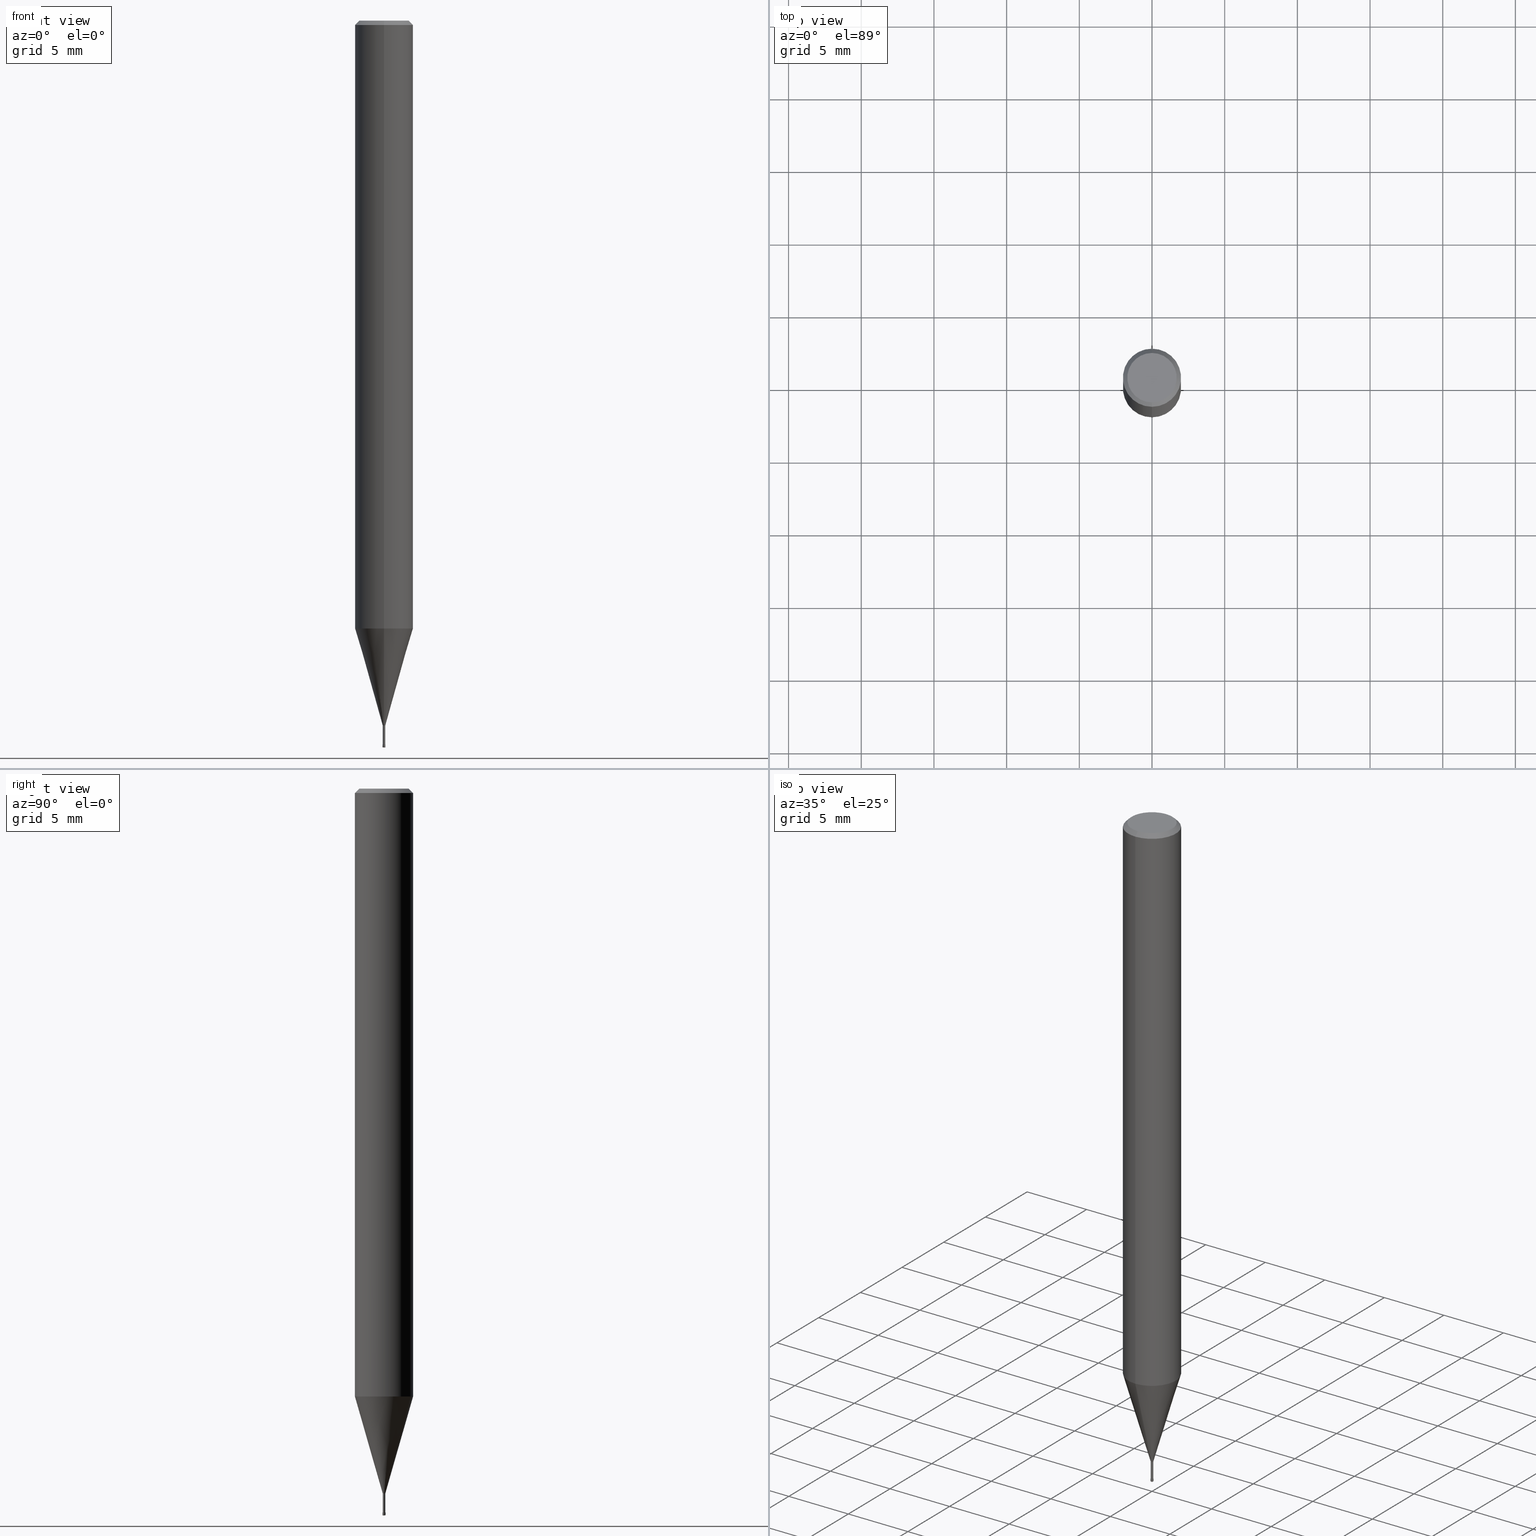
[diagram: canonical four-view strip — front | top / right | iso, engineering-drawing reading convention]
A machine part, canonical four-view strip (front | top / right | iso — engineering-drawing reading convention). The complete STEP part file that produces these views, byte-faithful:
ISO-10303-21;
HEADER;
FILE_DESCRIPTION(('no description'),'unknown implementation level');
FILE_NAME('HLRS2002-005-015E-Huellk.stp','  ',('CIMSOURCE GmbH'),('CADClick - KiM GmbH - www.kimweb.de'),'unknown preprocess','ACIS','unknown authorization');
FILE_SCHEMA(('automotive_design'));
ENDSEC;
DATA;
#1=MECHANICAL_DESIGN_GEOMETRIC_PRESENTATION_REPRESENTATION(' ',(#14,#15,#16,#17,#18,#19,#20,#21,#22,#23,#24,#25,#26,#27,#28,#29,#30,#31,#32,#33,#34,#35,#36,#37,#38,#39,#40,#41,#42,#43,#44,#45,#46,#47,#48,#49,#50,#51,#52,#53,#54,#55,#56,#57,#58,#59,#60,#61,#62,#63,#64,#65,#66,#67,#68,#69,#70,#71,#72,#73,#74,#75,#76,#77,#78,#79,#80),#10);
#2=PRODUCT_DEFINITION_CONTEXT('',#81,'design');
#3=APPLICATION_PROTOCOL_DEFINITION('INTERNATIONAL STANDARD','automotive_design',1994,#81);
#4=PRODUCT_CATEGORY_RELATIONSHIP('NONE','NONE',#82,#83);
#5=SHAPE_DEFINITION_REPRESENTATION(#84,#85);
#6=PRODUCT_DEFINITION_CONTEXT('',#86,'design');
#7=APPLICATION_PROTOCOL_DEFINITION('INTERNATIONAL STANDARD','automotive_design',1994,#86);
#8=PRODUCT_CATEGORY_RELATIONSHIP('NONE','NONE',#87,#88);
#9=SHAPE_DEFINITION_REPRESENTATION(#89,#90);
#10= (GEOMETRIC_REPRESENTATION_CONTEXT(3)GLOBAL_UNCERTAINTY_ASSIGNED_CONTEXT((#93))GLOBAL_UNIT_ASSIGNED_CONTEXT((#95,#96,#97))REPRESENTATION_CONTEXT('NONE','WORKSPACE'));
#14=STYLED_ITEM('',(#99),#100);
#15=STYLED_ITEM('',(#101),#102);
#16=STYLED_ITEM('',(#103),#104);
#17=STYLED_ITEM('',(#105),#106);
#18=STYLED_ITEM('',(#107),#108);
#19=STYLED_ITEM('',(#109),#110);
#20=STYLED_ITEM('',(#111),#112);
#21=STYLED_ITEM('',(#113),#114);
#22=STYLED_ITEM('',(#115),#116);
#23=STYLED_ITEM('',(#117),#118);
#24=STYLED_ITEM('',(#119),#120);
#25=STYLED_ITEM('',(#121),#122);
#26=STYLED_ITEM('',(#123),#124);
#27=STYLED_ITEM('',(#125),#126);
#28=STYLED_ITEM('',(#127),#128);
#29=STYLED_ITEM('',(#129),#130);
#30=STYLED_ITEM('',(#131),#132);
#31=STYLED_ITEM('',(#133),#134);
#32=STYLED_ITEM('',(#135),#136);
#33=STYLED_ITEM('',(#137),#138);
#34=STYLED_ITEM('',(#139),#140);
#35=STYLED_ITEM('',(#141),#142);
#36=STYLED_ITEM('',(#143),#144);
#37=STYLED_ITEM('',(#145),#146);
#38=STYLED_ITEM('',(#147),#148);
#39=STYLED_ITEM('',(#149),#150);
#40=STYLED_ITEM('',(#151),#152);
#41=STYLED_ITEM('',(#153),#154);
#42=STYLED_ITEM('',(#155),#156);
#43=STYLED_ITEM('',(#157),#158);
#44=STYLED_ITEM('',(#159),#160);
#45=STYLED_ITEM('',(#161),#162);
#46=STYLED_ITEM('',(#163),#164);
#47=STYLED_ITEM('',(#165),#166);
#48=STYLED_ITEM('',(#167),#168);
#49=STYLED_ITEM('',(#169),#170);
#50=STYLED_ITEM('',(#171),#172);
#51=STYLED_ITEM('',(#173),#174);
#52=STYLED_ITEM('',(#175),#176);
#53=STYLED_ITEM('',(#177),#178);
#54=STYLED_ITEM('',(#179),#180);
#55=STYLED_ITEM('',(#181),#182);
#56=STYLED_ITEM('',(#183),#184);
#57=STYLED_ITEM('',(#185),#186);
#58=STYLED_ITEM('',(#187),#188);
#59=STYLED_ITEM('',(#189),#190);
#60=STYLED_ITEM('',(#191),#192);
#61=STYLED_ITEM('',(#193),#194);
#62=STYLED_ITEM('',(#195),#196);
#63=STYLED_ITEM('',(#197),#198);
#64=STYLED_ITEM('',(#199),#200);
#65=STYLED_ITEM('',(#201),#202);
#66=STYLED_ITEM('',(#203),#204);
#67=STYLED_ITEM('',(#205),#206);
#68=STYLED_ITEM('',(#207),#208);
#69=STYLED_ITEM('',(#209),#210);
#70=STYLED_ITEM('',(#211),#212);
#71=STYLED_ITEM('',(#213),#214);
#72=STYLED_ITEM('',(#215),#216);
#73=STYLED_ITEM('',(#217),#218);
#74=STYLED_ITEM('',(#219),#220);
#75=STYLED_ITEM('',(#221),#222);
#76=STYLED_ITEM('',(#223),#224);
#77=STYLED_ITEM('',(#225),#226);
#78=STYLED_ITEM('',(#227),#228);
#79=STYLED_ITEM('',(#229),#230);
#80=STYLED_ITEM('',(#231),#232);
#81=APPLICATION_CONTEXT(' ');
#82=PRODUCT_CATEGORY('part','NONE');
#83=PRODUCT_RELATED_PRODUCT_CATEGORY('detail',' ',(#233));
#84=PRODUCT_DEFINITION_SHAPE('NONE','NONE',#234);
#85=ADVANCED_BREP_SHAPE_REPRESENTATION('1',(#154,#235),#10);
#86=APPLICATION_CONTEXT(' ');
#87=PRODUCT_CATEGORY('part','NONE');
#88=PRODUCT_RELATED_PRODUCT_CATEGORY('detail',' ',(#236));
#89=PRODUCT_DEFINITION_SHAPE('NONE','NONE',#237);
#90=ADVANCED_BREP_SHAPE_REPRESENTATION('2',(#198,#238),#10);
#93=UNCERTAINTY_MEASURE_WITH_UNIT(LENGTH_MEASURE(1.0E-006),#95,'','');
#95= (CONVERSION_BASED_UNIT('MILLIMETRE',#241)LENGTH_UNIT()NAMED_UNIT(#244));
#96= (NAMED_UNIT(#246)PLANE_ANGLE_UNIT()SI_UNIT($,.RADIAN.));
#97= (NAMED_UNIT(#246)SOLID_ANGLE_UNIT()SI_UNIT($,.STERADIAN.));
#99=PRESENTATION_STYLE_ASSIGNMENT((#252));
#100=EDGE_CURVE('',#158,#156,#253,.T.);
#101=PRESENTATION_STYLE_ASSIGNMENT((#254));
#102=EDGE_CURVE('',#176,#200,#255,.T.);
#103=PRESENTATION_STYLE_ASSIGNMENT((#256));
#104=ADVANCED_FACE('',(#257),#258,.T.);
#105=PRESENTATION_STYLE_ASSIGNMENT((#259));
#106=EDGE_CURVE('',#208,#222,#260,.T.);
#107=PRESENTATION_STYLE_ASSIGNMENT((#261));
#108=EDGE_CURVE('',#124,#210,#262,.T.);
#109=PRESENTATION_STYLE_ASSIGNMENT((#263));
#110=ADVANCED_FACE('',(#264),#265,.T.);
#111=PRESENTATION_STYLE_ASSIGNMENT((#266));
#112=ADVANCED_FACE('',(#267,#268),#269,.T.);
#113=PRESENTATION_STYLE_ASSIGNMENT((#270));
#114=EDGE_CURVE('',#136,#176,#271,.T.);
#115=PRESENTATION_STYLE_ASSIGNMENT((#272));
#116=EDGE_CURVE('',#146,#222,#273,.T.);
#117=PRESENTATION_STYLE_ASSIGNMENT((#274));
#118=ADVANCED_FACE('',(#275),#276,.T.);
#119=PRESENTATION_STYLE_ASSIGNMENT((#277));
#120=ADVANCED_FACE('',(#278),#279,.T.);
#121=PRESENTATION_STYLE_ASSIGNMENT((#280));
#122=EDGE_CURVE('',#128,#160,#281,.T.);
#123=PRESENTATION_STYLE_ASSIGNMENT((#282));
#124=VERTEX_POINT('',#283);
#125=PRESENTATION_STYLE_ASSIGNMENT((#284));
#126=ADVANCED_FACE('',(#285),#286,.T.);
#127=PRESENTATION_STYLE_ASSIGNMENT((#287));
#128=VERTEX_POINT('',#288);
#129=PRESENTATION_STYLE_ASSIGNMENT((#289));
#130=ADVANCED_FACE('',(#290),#291,.T.);
#131=PRESENTATION_STYLE_ASSIGNMENT((#292));
#132=EDGE_CURVE('',#222,#158,#293,.T.);
#133=PRESENTATION_STYLE_ASSIGNMENT((#294));
#134=EDGE_CURVE('',#176,#138,#295,.T.);
#135=PRESENTATION_STYLE_ASSIGNMENT((#296));
#136=VERTEX_POINT('',#297);
#137=PRESENTATION_STYLE_ASSIGNMENT((#298));
#138=VERTEX_POINT('',#299);
#139=PRESENTATION_STYLE_ASSIGNMENT((#300));
#140=EDGE_CURVE('',#232,#208,#301,.T.);
#141=PRESENTATION_STYLE_ASSIGNMENT((#302));
#142=ADVANCED_FACE('',(#303),#304,.T.);
#143=PRESENTATION_STYLE_ASSIGNMENT((#305));
#144=VERTEX_POINT('',#306);
#145=PRESENTATION_STYLE_ASSIGNMENT((#307));
#146=VERTEX_POINT('',#308);
#147=PRESENTATION_STYLE_ASSIGNMENT((#309));
#148=EDGE_CURVE('',#156,#146,#310,.T.);
#149=PRESENTATION_STYLE_ASSIGNMENT((#311));
#150=ADVANCED_FACE('',(#312),#313,.T.);
#151=PRESENTATION_STYLE_ASSIGNMENT((#314));
#152=ADVANCED_FACE('',(#315),#316,.T.);
#153=PRESENTATION_STYLE_ASSIGNMENT((#317));
#154=MANIFOLD_SOLID_BREP('1',#318);
#155=PRESENTATION_STYLE_ASSIGNMENT((#319));
#156=VERTEX_POINT('',#320);
#157=PRESENTATION_STYLE_ASSIGNMENT((#321));
#158=VERTEX_POINT('',#322);
#159=PRESENTATION_STYLE_ASSIGNMENT((#323));
#160=VERTEX_POINT('',#324);
#161=PRESENTATION_STYLE_ASSIGNMENT((#325));
#162=EDGE_CURVE('',#124,#160,#326,.T.);
#163=PRESENTATION_STYLE_ASSIGNMENT((#327));
#164=VERTEX_POINT('',#328);
#165=PRESENTATION_STYLE_ASSIGNMENT((#329));
#166=ADVANCED_FACE('',(#330),#331,.T.);
#167=PRESENTATION_STYLE_ASSIGNMENT((#332));
#168=ADVANCED_FACE('',(#333),#334,.T.);
#169=PRESENTATION_STYLE_ASSIGNMENT((#335));
#170=EDGE_CURVE('',#136,#218,#336,.T.);
#171=PRESENTATION_STYLE_ASSIGNMENT((#337));
#172=EDGE_CURVE('',#200,#176,#338,.T.);
#173=PRESENTATION_STYLE_ASSIGNMENT((#339));
#174=EDGE_CURVE('',#156,#158,#340,.T.);
#175=PRESENTATION_STYLE_ASSIGNMENT((#341));
#176=VERTEX_POINT('',#342);
#177=PRESENTATION_STYLE_ASSIGNMENT((#343));
#178=EDGE_CURVE('',#144,#160,#344,.T.);
#179=PRESENTATION_STYLE_ASSIGNMENT((#345));
#180=ADVANCED_FACE('',(#346),#347,.T.);
#181=PRESENTATION_STYLE_ASSIGNMENT((#348));
#182=ADVANCED_FACE('',(#349),#350,.T.);
#183=PRESENTATION_STYLE_ASSIGNMENT((#351));
#184=EDGE_CURVE('',#230,#138,#352,.T.);
#185=PRESENTATION_STYLE_ASSIGNMENT((#353));
#186=ADVANCED_FACE('',(#354),#355,.T.);
#187=PRESENTATION_STYLE_ASSIGNMENT((#356));
#188=EDGE_CURVE('',#208,#232,#357,.T.);
#189=PRESENTATION_STYLE_ASSIGNMENT((#358));
#190=EDGE_CURVE('',#138,#230,#359,.T.);
#191=PRESENTATION_STYLE_ASSIGNMENT((#360));
#192=EDGE_CURVE('',#230,#200,#361,.T.);
#193=PRESENTATION_STYLE_ASSIGNMENT((#362));
#194=EDGE_CURVE('',#160,#128,#363,.T.);
#195=PRESENTATION_STYLE_ASSIGNMENT((#364));
#196=EDGE_CURVE('',#200,#218,#365,.T.);
#197=PRESENTATION_STYLE_ASSIGNMENT((#366));
#198=MANIFOLD_SOLID_BREP('2',#367);
#199=PRESENTATION_STYLE_ASSIGNMENT((#368));
#200=VERTEX_POINT('',#369);
#201=PRESENTATION_STYLE_ASSIGNMENT((#370));
#202=EDGE_CURVE('',#128,#164,#371,.T.);
#203=PRESENTATION_STYLE_ASSIGNMENT((#372));
#204=EDGE_CURVE('',#144,#164,#373,.T.);
#205=PRESENTATION_STYLE_ASSIGNMENT((#374));
#206=ADVANCED_FACE('',(#375),#376,.T.);
#207=PRESENTATION_STYLE_ASSIGNMENT((#377));
#208=VERTEX_POINT('',#378);
#209=PRESENTATION_STYLE_ASSIGNMENT((#379));
#210=VERTEX_POINT('',#380);
#211=PRESENTATION_STYLE_ASSIGNMENT((#381));
#212=EDGE_CURVE('',#218,#136,#382,.T.);
#213=PRESENTATION_STYLE_ASSIGNMENT((#383));
#214=EDGE_CURVE('',#222,#146,#384,.T.);
#215=PRESENTATION_STYLE_ASSIGNMENT((#385));
#216=EDGE_CURVE('',#164,#144,#386,.T.);
#217=PRESENTATION_STYLE_ASSIGNMENT((#387));
#218=VERTEX_POINT('',#388);
#219=PRESENTATION_STYLE_ASSIGNMENT((#389));
#220=ADVANCED_FACE('',(#390),#391,.T.);
#221=PRESENTATION_STYLE_ASSIGNMENT((#392));
#222=VERTEX_POINT('',#393);
#223=PRESENTATION_STYLE_ASSIGNMENT((#394));
#224=EDGE_CURVE('',#128,#210,#395,.T.);
#225=PRESENTATION_STYLE_ASSIGNMENT((#396));
#226=EDGE_CURVE('',#146,#232,#397,.T.);
#227=PRESENTATION_STYLE_ASSIGNMENT((#398));
#228=EDGE_CURVE('',#210,#124,#399,.T.);
#229=PRESENTATION_STYLE_ASSIGNMENT((#400));
#230=VERTEX_POINT('',#401);
#231=PRESENTATION_STYLE_ASSIGNMENT((#402));
#232=VERTEX_POINT('',#403);
#233=PRODUCT('1','1','PART-1-DESC',(#404));
#234=PRODUCT_DEFINITION('NONE','NONE',#405,#2);
#235=AXIS2_PLACEMENT_3D('',#406,#407,#408);
#236=PRODUCT('2','2','PART-2-DESC',(#409));
#237=PRODUCT_DEFINITION('NONE','NONE',#410,#6);
#238=AXIS2_PLACEMENT_3D('',#411,#412,#413);
#241=LENGTH_MEASURE_WITH_UNIT(LENGTH_MEASURE(1.0),#414);
#244=DIMENSIONAL_EXPONENTS(1.0,0.0,0.0,0.0,0.0,0.0,0.0);
#246=DIMENSIONAL_EXPONENTS(0.0,0.0,0.0,0.0,0.0,0.0,0.0);
#252=CURVE_STYLE('',#415,POSITIVE_LENGTH_MEASURE(1.0E-006),#416);
#253=CIRCLE('',#417,0.08495);
#254=CURVE_STYLE('',#418,POSITIVE_LENGTH_MEASURE(1.0E-006),#419);
#255=CIRCLE('',#420,2.0);
#256=SURFACE_STYLE_USAGE(.BOTH.,#421);
#257=FACE_OUTER_BOUND('',#422,.T.);
#258=CONICAL_SURFACE('',#423,1.85,0.785398163397453);
#259=CURVE_STYLE('',#424,POSITIVE_LENGTH_MEASURE(1.0E-006),#425);
#260=LINE('',#426,#427);
#261=CURVE_STYLE('',#428,POSITIVE_LENGTH_MEASURE(1.0E-006),#429);
#262=CIRCLE('',#430,0.05);
#263=SURFACE_STYLE_USAGE(.BOTH.,#431);
#264=FACE_OUTER_BOUND('',#432,.T.);
#265=TOROIDAL_SURFACE('',#433,0.0499999999999999,0.0500000000000001);
#266=SURFACE_STYLE_USAGE(.BOTH.,#434);
#267=FACE_OUTER_BOUND('',#435,.T.);
#268=FACE_BOUND('',#436,.T.);
#269=PLANE('',#437);
#270=CURVE_STYLE('',#438,POSITIVE_LENGTH_MEASURE(1.0E-006),#439);
#271=LINE('',#440,#441);
#272=CURVE_STYLE('',#442,POSITIVE_LENGTH_MEASURE(1.0E-006),#443);
#273=CIRCLE('',#444,0.08495);
#274=SURFACE_STYLE_USAGE(.BOTH.,#445);
#275=FACE_OUTER_BOUND('',#446,.T.);
#276=CONICAL_SURFACE('',#447,1.85,0.785398163397453);
#277=SURFACE_STYLE_USAGE(.BOTH.,#448);
#278=FACE_OUTER_BOUND('',#449,.T.);
#279=CYLINDRICAL_SURFACE('',#450,0.08495);
#280=CURVE_STYLE('',#451,POSITIVE_LENGTH_MEASURE(1.0E-006),#452);
#281=CIRCLE('',#453,0.1);
#282=POINT_STYLE(' ',#454,POSITIVE_LENGTH_MEASURE(1.0E-006),#455);
#283=CARTESIAN_POINT('',(0.0,0.05,-50.0));
#284=SURFACE_STYLE_USAGE(.BOTH.,#456);
#285=FACE_OUTER_BOUND('',#457,.T.);
#286=CYLINDRICAL_SURFACE('',#458,2.0);
#287=POINT_STYLE(' ',#459,POSITIVE_LENGTH_MEASURE(1.0E-006),#460);
#288=CARTESIAN_POINT('',(1.22460635382238E-017,-0.1,-49.95));
#289=SURFACE_STYLE_USAGE(.BOTH.,#461);
#290=FACE_OUTER_BOUND('',#462,.T.);
#291=TOROIDAL_SURFACE('',#463,0.0499999999999999,0.0500000000000001);
#292=CURVE_STYLE('',#464,POSITIVE_LENGTH_MEASURE(1.0E-006),#465);
#293=LINE('',#466,#467);
#294=CURVE_STYLE('',#468,POSITIVE_LENGTH_MEASURE(1.0E-006),#469);
#295=LINE('',#470,#471);
#296=POINT_STYLE(' ',#472,POSITIVE_LENGTH_MEASURE(1.0E-006),#473);
#297=CARTESIAN_POINT('',(2.44921270764475E-016,-2.0,-41.822));
#298=POINT_STYLE(' ',#474,POSITIVE_LENGTH_MEASURE(1.0E-006),#475);
#299=CARTESIAN_POINT('',(2.08183080149804E-016,-1.7,0.0));
#300=CURVE_STYLE('',#476,POSITIVE_LENGTH_MEASURE(1.0E-006),#477);
#301=CIRCLE('',#478,1.99995);
#302=SURFACE_STYLE_USAGE(.BOTH.,#479);
#303=FACE_OUTER_BOUND('',#480,.T.);
#304=CONICAL_SURFACE('',#481,0.09995,0.00066666656790128);
#305=POINT_STYLE(' ',#482,POSITIVE_LENGTH_MEASURE(1.0E-006),#483);
#306=CARTESIAN_POINT('',(0.0,0.0999,-49.8));
#307=POINT_STYLE(' ',#484,POSITIVE_LENGTH_MEASURE(1.0E-006),#485);
#308=CARTESIAN_POINT('',(1.04030309757211E-017,-0.08495,-48.5));
#309=CURVE_STYLE('',#486,POSITIVE_LENGTH_MEASURE(1.0E-006),#487);
#310=LINE('',#488,#489);
#311=SURFACE_STYLE_USAGE(.BOTH.,#490);
#312=FACE_OUTER_BOUND('',#491,.T.);
#313=PLANE('',#492);
#314=SURFACE_STYLE_USAGE(.BOTH.,#493);
#315=FACE_OUTER_BOUND('',#494,.T.);
#316=CONICAL_SURFACE('',#495,0.09995,0.00066666656790128);
#317=SURFACE_STYLE_USAGE(.BOTH.,#496);
#318=CLOSED_SHELL('',(#186,#180,#220,#118,#112,#150,#104,#126,#206,#120,#182));
#319=POINT_STYLE(' ',#497,POSITIVE_LENGTH_MEASURE(1.0E-006),#498);
#320=CARTESIAN_POINT('',(1.04030309757211E-017,-0.08495,-49.8));
#321=POINT_STYLE(' ',#499,POSITIVE_LENGTH_MEASURE(1.0E-006),#500);
#322=CARTESIAN_POINT('',(0.0,0.08495,-49.8));
#323=POINT_STYLE(' ',#501,POSITIVE_LENGTH_MEASURE(1.0E-006),#502);
#324=CARTESIAN_POINT('',(0.0,0.1,-49.95));
#325=CURVE_STYLE('',#503,POSITIVE_LENGTH_MEASURE(1.0E-006),#504);
#326=CIRCLE('',#505,0.0500000000000001);
#327=POINT_STYLE(' ',#506,POSITIVE_LENGTH_MEASURE(1.0E-006),#507);
#328=CARTESIAN_POINT('',(1.22338174746855E-017,-0.0999,-49.8));
#329=SURFACE_STYLE_USAGE(.BOTH.,#508);
#330=FACE_OUTER_BOUND('',#509,.T.);
#331=PLANE('',#510);
#332=SURFACE_STYLE_USAGE(.BOTH.,#511);
#333=FACE_OUTER_BOUND('',#512,.T.);
#334=PLANE('',#513);
#335=CURVE_STYLE('',#514,POSITIVE_LENGTH_MEASURE(1.0E-006),#515);
#336=CIRCLE('',#516,2.0);
#337=CURVE_STYLE('',#517,POSITIVE_LENGTH_MEASURE(1.0E-006),#518);
#338=CIRCLE('',#519,2.0);
#339=CURVE_STYLE('',#520,POSITIVE_LENGTH_MEASURE(1.0E-006),#521);
#340=CIRCLE('',#522,0.08495);
#341=POINT_STYLE(' ',#523,POSITIVE_LENGTH_MEASURE(1.0E-006),#524);
#342=CARTESIAN_POINT('',(2.44921270764475E-016,-2.0,-0.299999999999997));
#343=CURVE_STYLE('',#525,POSITIVE_LENGTH_MEASURE(1.0E-006),#526);
#344=LINE('',#527,#528);
#345=SURFACE_STYLE_USAGE(.BOTH.,#529);
#346=FACE_OUTER_BOUND('',#530,.T.);
#347=CONICAL_SURFACE('',#531,1.04245,0.279268497676986);
#348=SURFACE_STYLE_USAGE(.BOTH.,#532);
#349=FACE_OUTER_BOUND('',#533,.T.);
#350=PLANE('',#534);
#351=CURVE_STYLE('',#535,POSITIVE_LENGTH_MEASURE(1.0E-006),#536);
#352=CIRCLE('',#537,1.7);
#353=SURFACE_STYLE_USAGE(.BOTH.,#538);
#354=FACE_OUTER_BOUND('',#539,.T.);
#355=CYLINDRICAL_SURFACE('',#540,0.08495);
#356=CURVE_STYLE('',#541,POSITIVE_LENGTH_MEASURE(1.0E-006),#542);
#357=CIRCLE('',#543,1.99995);
#358=CURVE_STYLE('',#544,POSITIVE_LENGTH_MEASURE(1.0E-006),#545);
#359=CIRCLE('',#546,1.7);
#360=CURVE_STYLE('',#547,POSITIVE_LENGTH_MEASURE(1.0E-006),#548);
#361=LINE('',#549,#550);
#362=CURVE_STYLE('',#551,POSITIVE_LENGTH_MEASURE(1.0E-006),#552);
#363=CIRCLE('',#553,0.1);
#364=CURVE_STYLE('',#554,POSITIVE_LENGTH_MEASURE(1.0E-006),#555);
#365=LINE('',#556,#557);
#366=SURFACE_STYLE_USAGE(.BOTH.,#558);
#367=CLOSED_SHELL('',(#110,#142,#166,#152,#130,#168));
#368=POINT_STYLE(' ',#559,POSITIVE_LENGTH_MEASURE(1.0E-006),#560);
#369=CARTESIAN_POINT('',(0.0,2.0,-0.299999999999997));
#370=CURVE_STYLE('',#561,POSITIVE_LENGTH_MEASURE(1.0E-006),#562);
#371=LINE('',#563,#564);
#372=CURVE_STYLE('',#565,POSITIVE_LENGTH_MEASURE(1.0E-006),#566);
#373=CIRCLE('',#567,0.0999);
#374=SURFACE_STYLE_USAGE(.BOTH.,#568);
#375=FACE_OUTER_BOUND('',#569,.T.);
#376=CONICAL_SURFACE('',#570,1.04245,0.279268497676986);
#377=POINT_STYLE(' ',#571,POSITIVE_LENGTH_MEASURE(1.0E-006),#572);
#378=CARTESIAN_POINT('',(0.0,1.99995,-41.822));
#379=POINT_STYLE(' ',#573,POSITIVE_LENGTH_MEASURE(1.0E-006),#574);
#380=CARTESIAN_POINT('',(6.12303176911189E-018,-0.05,-50.0));
#381=CURVE_STYLE('',#575,POSITIVE_LENGTH_MEASURE(1.0E-006),#576);
#382=CIRCLE('',#577,2.0);
#383=CURVE_STYLE('',#578,POSITIVE_LENGTH_MEASURE(1.0E-006),#579);
#384=CIRCLE('',#580,0.08495);
#385=CURVE_STYLE('',#581,POSITIVE_LENGTH_MEASURE(1.0E-006),#582);
#386=CIRCLE('',#583,0.0999);
#387=POINT_STYLE(' ',#584,POSITIVE_LENGTH_MEASURE(1.0E-006),#585);
#388=CARTESIAN_POINT('',(0.0,2.0,-41.822));
#389=SURFACE_STYLE_USAGE(.BOTH.,#586);
#390=FACE_OUTER_BOUND('',#587,.T.);
#391=CYLINDRICAL_SURFACE('',#588,2.0);
#392=POINT_STYLE(' ',#589,POSITIVE_LENGTH_MEASURE(1.0E-006),#590);
#393=CARTESIAN_POINT('',(0.0,0.08495,-48.5));
#394=CURVE_STYLE('',#591,POSITIVE_LENGTH_MEASURE(1.0E-006),#592);
#395=CIRCLE('',#593,0.0500000000000001);
#396=CURVE_STYLE('',#594,POSITIVE_LENGTH_MEASURE(1.0E-006),#595);
#397=LINE('',#596,#597);
#398=CURVE_STYLE('',#598,POSITIVE_LENGTH_MEASURE(1.0E-006),#599);
#399=CIRCLE('',#600,0.05);
#400=POINT_STYLE(' ',#601,POSITIVE_LENGTH_MEASURE(1.0E-006),#602);
#401=CARTESIAN_POINT('',(0.0,1.7,0.0));
#402=POINT_STYLE(' ',#603,POSITIVE_LENGTH_MEASURE(1.0E-006),#604);
#403=CARTESIAN_POINT('',(2.44915147732706E-016,-1.99995,-41.822));
#404=PRODUCT_CONTEXT('',#81,'mechanical');
#405=PRODUCT_DEFINITION_FORMATION_WITH_SPECIFIED_SOURCE(' ','NONE',#233,.NOT_KNOWN.);
#406=CARTESIAN_POINT('',(0.0,0.0,0.0));
#407=DIRECTION('',(0.0,0.0,1.0));
#408=DIRECTION('',(1.0,0.0,0.0));
#409=PRODUCT_CONTEXT('',#86,'mechanical');
#410=PRODUCT_DEFINITION_FORMATION_WITH_SPECIFIED_SOURCE(' ','NONE',#236,.NOT_KNOWN.);
#411=CARTESIAN_POINT('',(0.0,0.0,0.0));
#412=DIRECTION('',(0.0,0.0,1.0));
#413=DIRECTION('',(1.0,0.0,0.0));
#414= (NAMED_UNIT(#244)LENGTH_UNIT()SI_UNIT(.MILLI.,.METRE.));
#415=DRAUGHTING_PRE_DEFINED_CURVE_FONT('continuous');
#416=COLOUR_RGB('',0.498039215803146,0.498039215803146,0.498039215803146);
#417=AXIS2_PLACEMENT_3D('',#606,#607,#608);
#418=DRAUGHTING_PRE_DEFINED_CURVE_FONT('continuous');
#419=COLOUR_RGB('',0.498039215803146,0.498039215803146,0.498039215803146);
#420=AXIS2_PLACEMENT_3D('',#609,#610,#611);
#421=SURFACE_SIDE_STYLE('',(#612));
#422=EDGE_LOOP('',(#613,#614,#615,#616));
#423=AXIS2_PLACEMENT_3D('',#617,#618,#619);
#424=DRAUGHTING_PRE_DEFINED_CURVE_FONT('continuous');
#425=COLOUR_RGB('',0.498039215803146,0.498039215803146,0.498039215803146);
#426=CARTESIAN_POINT('',(-1.27659089354214E-016,1.04245,-45.161));
#427=VECTOR('',#620,1.0);
#428=DRAUGHTING_PRE_DEFINED_CURVE_FONT('continuous');
#429=COLOUR_RGB('',0.800000011920929,0.800000011920929,0.800000011920929);
#430=AXIS2_PLACEMENT_3D('',#621,#622,#623);
#431=SURFACE_SIDE_STYLE('',(#624));
#432=EDGE_LOOP('',(#625,#626,#627,#628));
#433=AXIS2_PLACEMENT_3D('',#629,#630,#631);
#434=SURFACE_SIDE_STYLE('',(#632));
#435=EDGE_LOOP('',(#633,#634));
#436=EDGE_LOOP('',(#635,#636));
#437=AXIS2_PLACEMENT_3D('',#637,#638,#639);
#438=DRAUGHTING_PRE_DEFINED_CURVE_FONT('continuous');
#439=COLOUR_RGB('',0.498039215803146,0.498039215803146,0.498039215803146);
#440=CARTESIAN_POINT('',(2.44921270764475E-016,-2.0,-21.061));
#441=VECTOR('',#640,1.0);
#442=DRAUGHTING_PRE_DEFINED_CURVE_FONT('continuous');
#443=COLOUR_RGB('',0.498039215803146,0.498039215803146,0.498039215803146);
#444=AXIS2_PLACEMENT_3D('',#641,#642,#643);
#445=SURFACE_SIDE_STYLE('',(#644));
#446=EDGE_LOOP('',(#645,#646,#647,#648));
#447=AXIS2_PLACEMENT_3D('',#649,#650,#651);
#448=SURFACE_SIDE_STYLE('',(#652));
#449=EDGE_LOOP('',(#653,#654,#655,#656));
#450=AXIS2_PLACEMENT_3D('',#657,#658,#659);
#451=DRAUGHTING_PRE_DEFINED_CURVE_FONT('continuous');
#452=COLOUR_RGB('',0.800000011920929,0.800000011920929,0.800000011920929);
#453=AXIS2_PLACEMENT_3D('',#660,#661,#662);
#454=PRE_DEFINED_MARKER('');
#455=COLOUR_RGB('',0.800000011920929,0.800000011920929,0.800000011920929);
#456=SURFACE_SIDE_STYLE('',(#663));
#457=EDGE_LOOP('',(#664,#665,#666,#667));
#458=AXIS2_PLACEMENT_3D('',#668,#669,#670);
#459=PRE_DEFINED_MARKER('');
#460=COLOUR_RGB('',0.800000011920929,0.800000011920929,0.800000011920929);
#461=SURFACE_SIDE_STYLE('',(#671));
#462=EDGE_LOOP('',(#672,#673,#674,#675));
#463=AXIS2_PLACEMENT_3D('',#676,#677,#678);
#464=DRAUGHTING_PRE_DEFINED_CURVE_FONT('continuous');
#465=COLOUR_RGB('',0.498039215803146,0.498039215803146,0.498039215803146);
#466=CARTESIAN_POINT('',(-1.04030309757211E-017,0.08495,-49.15));
#467=VECTOR('',#679,1.0);
#468=DRAUGHTING_PRE_DEFINED_CURVE_FONT('continuous');
#469=COLOUR_RGB('',0.498039215803146,0.498039215803146,0.498039215803146);
#470=CARTESIAN_POINT('',(2.2655217545714E-016,-1.85,-0.149999999999999));
#471=VECTOR('',#680,1.0);
#472=PRE_DEFINED_MARKER('');
#473=COLOUR_RGB('',0.498039215803146,0.498039215803146,0.498039215803146);
#474=PRE_DEFINED_MARKER('');
#475=COLOUR_RGB('',0.498039215803146,0.498039215803146,0.498039215803146);
#476=DRAUGHTING_PRE_DEFINED_CURVE_FONT('continuous');
#477=COLOUR_RGB('',0.498039215803146,0.498039215803146,0.498039215803146);
#478=AXIS2_PLACEMENT_3D('',#681,#682,#683);
#479=SURFACE_SIDE_STYLE('',(#684));
#480=EDGE_LOOP('',(#685,#686,#687,#688));
#481=AXIS2_PLACEMENT_3D('',#689,#690,#691);
#482=PRE_DEFINED_MARKER('');
#483=COLOUR_RGB('',0.800000011920929,0.800000011920929,0.800000011920929);
#484=PRE_DEFINED_MARKER('');
#485=COLOUR_RGB('',0.498039215803146,0.498039215803146,0.498039215803146);
#486=DRAUGHTING_PRE_DEFINED_CURVE_FONT('continuous');
#487=COLOUR_RGB('',0.498039215803146,0.498039215803146,0.498039215803146);
#488=CARTESIAN_POINT('',(1.04030309757211E-017,-0.08495,-49.15));
#489=VECTOR('',#692,1.0);
#490=SURFACE_SIDE_STYLE('',(#693));
#491=EDGE_LOOP('',(#694,#695));
#492=AXIS2_PLACEMENT_3D('',#696,#697,#698);
#493=SURFACE_SIDE_STYLE('',(#699));
#494=EDGE_LOOP('',(#700,#701,#702,#703));
#495=AXIS2_PLACEMENT_3D('',#704,#705,#706);
#496=SURFACE_SIDE_STYLE('',(#707));
#497=PRE_DEFINED_MARKER('');
#498=COLOUR_RGB('',0.498039215803146,0.498039215803146,0.498039215803146);
#499=PRE_DEFINED_MARKER('');
#500=COLOUR_RGB('',0.498039215803146,0.498039215803146,0.498039215803146);
#501=PRE_DEFINED_MARKER('');
#502=COLOUR_RGB('',0.800000011920929,0.800000011920929,0.800000011920929);
#503=DRAUGHTING_PRE_DEFINED_CURVE_FONT('continuous');
#504=COLOUR_RGB('',0.800000011920929,0.800000011920929,0.800000011920929);
#505=AXIS2_PLACEMENT_3D('',#708,#709,#710);
#506=PRE_DEFINED_MARKER('');
#507=COLOUR_RGB('',0.800000011920929,0.800000011920929,0.800000011920929);
#508=SURFACE_SIDE_STYLE('',(#711));
#509=EDGE_LOOP('',(#712,#713));
#510=AXIS2_PLACEMENT_3D('',#714,#715,#716);
#511=SURFACE_SIDE_STYLE('',(#717));
#512=EDGE_LOOP('',(#718,#719));
#513=AXIS2_PLACEMENT_3D('',#720,#721,#722);
#514=DRAUGHTING_PRE_DEFINED_CURVE_FONT('continuous');
#515=COLOUR_RGB('',0.498039215803146,0.498039215803146,0.498039215803146);
#516=AXIS2_PLACEMENT_3D('',#723,#724,#725);
#517=DRAUGHTING_PRE_DEFINED_CURVE_FONT('continuous');
#518=COLOUR_RGB('',0.498039215803146,0.498039215803146,0.498039215803146);
#519=AXIS2_PLACEMENT_3D('',#726,#727,#728);
#520=DRAUGHTING_PRE_DEFINED_CURVE_FONT('continuous');
#521=COLOUR_RGB('',0.498039215803146,0.498039215803146,0.498039215803146);
#522=AXIS2_PLACEMENT_3D('',#729,#730,#731);
#523=PRE_DEFINED_MARKER('');
#524=COLOUR_RGB('',0.498039215803146,0.498039215803146,0.498039215803146);
#525=DRAUGHTING_PRE_DEFINED_CURVE_FONT('continuous');
#526=COLOUR_RGB('',0.800000011920929,0.800000011920929,0.800000011920929);
#527=CARTESIAN_POINT('',(-1.22399405064547E-017,0.09995,-49.875));
#528=VECTOR('',#732,1.0);
#529=SURFACE_SIDE_STYLE('',(#733));
#530=EDGE_LOOP('',(#734,#735,#736,#737));
#531=AXIS2_PLACEMENT_3D('',#738,#739,#740);
#532=SURFACE_SIDE_STYLE('',(#741));
#533=EDGE_LOOP('',(#742,#743));
#534=AXIS2_PLACEMENT_3D('',#744,#745,#746);
#535=DRAUGHTING_PRE_DEFINED_CURVE_FONT('continuous');
#536=COLOUR_RGB('',0.498039215803146,0.498039215803146,0.498039215803146);
#537=AXIS2_PLACEMENT_3D('',#747,#748,#749);
#538=SURFACE_SIDE_STYLE('',(#750));
#539=EDGE_LOOP('',(#751,#752,#753,#754));
#540=AXIS2_PLACEMENT_3D('',#755,#756,#757);
#541=DRAUGHTING_PRE_DEFINED_CURVE_FONT('continuous');
#542=COLOUR_RGB('',0.498039215803146,0.498039215803146,0.498039215803146);
#543=AXIS2_PLACEMENT_3D('',#758,#759,#760);
#544=DRAUGHTING_PRE_DEFINED_CURVE_FONT('continuous');
#545=COLOUR_RGB('',0.498039215803146,0.498039215803146,0.498039215803146);
#546=AXIS2_PLACEMENT_3D('',#761,#762,#763);
#547=DRAUGHTING_PRE_DEFINED_CURVE_FONT('continuous');
#548=COLOUR_RGB('',0.498039215803146,0.498039215803146,0.498039215803146);
#549=CARTESIAN_POINT('',(-2.2655217545714E-016,1.85,-0.149999999999999));
#550=VECTOR('',#764,1.0);
#551=DRAUGHTING_PRE_DEFINED_CURVE_FONT('continuous');
#552=COLOUR_RGB('',0.800000011920929,0.800000011920929,0.800000011920929);
#553=AXIS2_PLACEMENT_3D('',#765,#766,#767);
#554=DRAUGHTING_PRE_DEFINED_CURVE_FONT('continuous');
#555=COLOUR_RGB('',0.498039215803146,0.498039215803146,0.498039215803146);
#556=CARTESIAN_POINT('',(-2.44921270764475E-016,2.0,-21.061));
#557=VECTOR('',#768,1.0);
#558=SURFACE_SIDE_STYLE('',(#769));
#559=PRE_DEFINED_MARKER('');
#560=COLOUR_RGB('',0.498039215803146,0.498039215803146,0.498039215803146);
#561=DRAUGHTING_PRE_DEFINED_CURVE_FONT('continuous');
#562=COLOUR_RGB('',0.800000011920929,0.800000011920929,0.800000011920929);
#563=CARTESIAN_POINT('',(1.22399405064547E-017,-0.09995,-49.875));
#564=VECTOR('',#770,1.0);
#565=DRAUGHTING_PRE_DEFINED_CURVE_FONT('continuous');
#566=COLOUR_RGB('',0.800000011920929,0.800000011920929,0.800000011920929);
#567=AXIS2_PLACEMENT_3D('',#771,#772,#773);
#568=SURFACE_SIDE_STYLE('',(#774));
#569=EDGE_LOOP('',(#775,#776,#777,#778));
#570=AXIS2_PLACEMENT_3D('',#779,#780,#781);
#571=PRE_DEFINED_MARKER('');
#572=COLOUR_RGB('',0.498039215803146,0.498039215803146,0.498039215803146);
#573=PRE_DEFINED_MARKER('');
#574=COLOUR_RGB('',0.800000011920929,0.800000011920929,0.800000011920929);
#575=DRAUGHTING_PRE_DEFINED_CURVE_FONT('continuous');
#576=COLOUR_RGB('',0.498039215803146,0.498039215803146,0.498039215803146);
#577=AXIS2_PLACEMENT_3D('',#782,#783,#784);
#578=DRAUGHTING_PRE_DEFINED_CURVE_FONT('continuous');
#579=COLOUR_RGB('',0.498039215803146,0.498039215803146,0.498039215803146);
#580=AXIS2_PLACEMENT_3D('',#785,#786,#787);
#581=DRAUGHTING_PRE_DEFINED_CURVE_FONT('continuous');
#582=COLOUR_RGB('',0.800000011920929,0.800000011920929,0.800000011920929);
#583=AXIS2_PLACEMENT_3D('',#788,#789,#790);
#584=PRE_DEFINED_MARKER('');
#585=COLOUR_RGB('',0.498039215803146,0.498039215803146,0.498039215803146);
#586=SURFACE_SIDE_STYLE('',(#791));
#587=EDGE_LOOP('',(#792,#793,#794,#795));
#588=AXIS2_PLACEMENT_3D('',#796,#797,#798);
#589=PRE_DEFINED_MARKER('');
#590=COLOUR_RGB('',0.498039215803146,0.498039215803146,0.498039215803146);
#591=DRAUGHTING_PRE_DEFINED_CURVE_FONT('continuous');
#592=COLOUR_RGB('',0.800000011920929,0.800000011920929,0.800000011920929);
#593=AXIS2_PLACEMENT_3D('',#799,#800,#801);
#594=DRAUGHTING_PRE_DEFINED_CURVE_FONT('continuous');
#595=COLOUR_RGB('',0.498039215803146,0.498039215803146,0.498039215803146);
#596=CARTESIAN_POINT('',(1.27659089354214E-016,-1.04245,-45.161));
#597=VECTOR('',#802,1.0);
#598=DRAUGHTING_PRE_DEFINED_CURVE_FONT('continuous');
#599=COLOUR_RGB('',0.800000011920929,0.800000011920929,0.800000011920929);
#600=AXIS2_PLACEMENT_3D('',#803,#804,#805);
#601=PRE_DEFINED_MARKER('');
#602=COLOUR_RGB('',0.498039215803146,0.498039215803146,0.498039215803146);
#603=PRE_DEFINED_MARKER('');
#604=COLOUR_RGB('',0.498039215803146,0.498039215803146,0.498039215803146);
#606=CARTESIAN_POINT('',(0.0,0.0,-49.8));
#607=DIRECTION('',(0.0,0.0,-1.0));
#608=DIRECTION('',(0.0,1.0,0.0));
#609=CARTESIAN_POINT('',(0.0,0.0,-0.299999999999997));
#610=DIRECTION('',(0.0,0.0,-1.0));
#611=DIRECTION('',(0.0,1.0,0.0));
#612=SURFACE_STYLE_FILL_AREA(#806);
#613=ORIENTED_EDGE('',*,*,#192,.T.);
#614=ORIENTED_EDGE('',*,*,#102,.F.);
#615=ORIENTED_EDGE('',*,*,#134,.T.);
#616=ORIENTED_EDGE('',*,*,#190,.T.);
#617=CARTESIAN_POINT('',(0.0,0.0,-0.149999999999999));
#618=DIRECTION('',(0.0,-0.0,-1.0));
#619=DIRECTION('',(0.0,1.0,0.0));
#620=DIRECTION('',(3.37565876916665E-017,-0.275652560402792,-0.961257335963365));
#621=CARTESIAN_POINT('',(0.0,0.0,-50.0));
#622=DIRECTION('',(0.0,0.0,-1.0));
#623=DIRECTION('',(0.0,1.0,0.0));
#624=SURFACE_STYLE_FILL_AREA(#807);
#625=ORIENTED_EDGE('',*,*,#224,.F.);
#626=ORIENTED_EDGE('',*,*,#122,.T.);
#627=ORIENTED_EDGE('',*,*,#162,.F.);
#628=ORIENTED_EDGE('',*,*,#228,.F.);
#629=CARTESIAN_POINT('',(0.0,0.0,-49.95));
#630=DIRECTION('',(0.0,0.0,-1.0));
#631=DIRECTION('',(0.0,-1.0,0.0));
#632=SURFACE_STYLE_FILL_AREA(#808);
#633=ORIENTED_EDGE('',*,*,#212,.T.);
#634=ORIENTED_EDGE('',*,*,#170,.T.);
#635=ORIENTED_EDGE('',*,*,#188,.F.);
#636=ORIENTED_EDGE('',*,*,#140,.F.);
#637=CARTESIAN_POINT('',(0.0,1.0,-41.822));
#638=DIRECTION('',(0.0,0.0,-1.0));
#639=DIRECTION('',(0.0,1.0,0.0));
#640=DIRECTION('',(-0.0,-0.0,1.0));
#641=CARTESIAN_POINT('',(0.0,0.0,-48.5));
#642=DIRECTION('',(0.0,0.0,-1.0));
#643=DIRECTION('',(0.0,1.0,0.0));
#644=SURFACE_STYLE_FILL_AREA(#809);
#645=ORIENTED_EDGE('',*,*,#192,.F.);
#646=ORIENTED_EDGE('',*,*,#184,.T.);
#647=ORIENTED_EDGE('',*,*,#134,.F.);
#648=ORIENTED_EDGE('',*,*,#172,.F.);
#649=CARTESIAN_POINT('',(0.0,0.0,-0.149999999999999));
#650=DIRECTION('',(0.0,-0.0,-1.0));
#651=DIRECTION('',(0.0,1.0,0.0));
#652=SURFACE_STYLE_FILL_AREA(#810);
#653=ORIENTED_EDGE('',*,*,#132,.T.);
#654=ORIENTED_EDGE('',*,*,#174,.F.);
#655=ORIENTED_EDGE('',*,*,#148,.T.);
#656=ORIENTED_EDGE('',*,*,#116,.T.);
#657=CARTESIAN_POINT('',(0.0,0.0,-49.15));
#658=DIRECTION('',(-0.0,-0.0,1.0));
#659=DIRECTION('',(0.0,1.0,0.0));
#660=CARTESIAN_POINT('',(0.0,0.0,-49.95));
#661=DIRECTION('',(0.0,0.0,-1.0));
#662=DIRECTION('',(0.0,1.0,0.0));
#663=SURFACE_STYLE_FILL_AREA(#811);
#664=ORIENTED_EDGE('',*,*,#196,.T.);
#665=ORIENTED_EDGE('',*,*,#170,.F.);
#666=ORIENTED_EDGE('',*,*,#114,.T.);
#667=ORIENTED_EDGE('',*,*,#102,.T.);
#668=CARTESIAN_POINT('',(0.0,0.0,-21.061));
#669=DIRECTION('',(-0.0,-0.0,1.0));
#670=DIRECTION('',(0.0,1.0,0.0));
#671=SURFACE_STYLE_FILL_AREA(#812);
#672=ORIENTED_EDGE('',*,*,#224,.T.);
#673=ORIENTED_EDGE('',*,*,#108,.F.);
#674=ORIENTED_EDGE('',*,*,#162,.T.);
#675=ORIENTED_EDGE('',*,*,#194,.T.);
#676=CARTESIAN_POINT('',(0.0,0.0,-49.95));
#677=DIRECTION('',(0.0,0.0,-1.0));
#678=DIRECTION('',(0.0,-1.0,0.0));
#679=DIRECTION('',(0.0,0.0,-1.0));
#680=DIRECTION('',(-8.6592745707194E-017,0.707106781186551,0.707106781186544));
#681=CARTESIAN_POINT('',(0.0,0.0,-41.822));
#682=DIRECTION('',(0.0,0.0,-1.0));
#683=DIRECTION('',(0.0,1.0,0.0));
#684=SURFACE_STYLE_FILL_AREA(#813);
#685=ORIENTED_EDGE('',*,*,#178,.F.);
#686=ORIENTED_EDGE('',*,*,#204,.T.);
#687=ORIENTED_EDGE('',*,*,#202,.F.);
#688=ORIENTED_EDGE('',*,*,#194,.F.);
#689=CARTESIAN_POINT('',(0.0,0.0,-49.875));
#690=DIRECTION('',(0.0,-0.0,-1.0));
#691=DIRECTION('',(0.0,1.0,0.0));
#692=DIRECTION('',(-0.0,-0.0,1.0));
#693=SURFACE_STYLE_FILL_AREA(#814);
#694=ORIENTED_EDGE('',*,*,#184,.F.);
#695=ORIENTED_EDGE('',*,*,#190,.F.);
#696=CARTESIAN_POINT('',(0.0,0.85,0.0));
#697=DIRECTION('',(-0.0,0.0,1.0));
#698=DIRECTION('',(0.0,-1.0,0.0));
#699=SURFACE_STYLE_FILL_AREA(#815);
#700=ORIENTED_EDGE('',*,*,#178,.T.);
#701=ORIENTED_EDGE('',*,*,#122,.F.);
#702=ORIENTED_EDGE('',*,*,#202,.T.);
#703=ORIENTED_EDGE('',*,*,#216,.T.);
#704=CARTESIAN_POINT('',(0.0,0.0,-49.875));
#705=DIRECTION('',(0.0,-0.0,-1.0));
#706=DIRECTION('',(0.0,1.0,0.0));
#707=SURFACE_STYLE_FILL_AREA(#816);
#708=CARTESIAN_POINT('',(-6.12303176911187E-018,0.0499999999999999,-49.95));
#709=DIRECTION('',(1.0,1.22460635382238E-016,0.0));
#710=DIRECTION('',(-1.22460635382238E-016,1.0,0.0));
#711=SURFACE_STYLE_FILL_AREA(#817);
#712=ORIENTED_EDGE('',*,*,#204,.F.);
#713=ORIENTED_EDGE('',*,*,#216,.F.);
#714=CARTESIAN_POINT('',(0.0,0.04995,-49.8));
#715=DIRECTION('',(-0.0,0.0,1.0));
#716=DIRECTION('',(0.0,-1.0,0.0));
#717=SURFACE_STYLE_FILL_AREA(#818);
#718=ORIENTED_EDGE('',*,*,#108,.T.);
#719=ORIENTED_EDGE('',*,*,#228,.T.);
#720=CARTESIAN_POINT('',(0.0,0.025,-50.0));
#721=DIRECTION('',(0.0,0.0,-1.0));
#722=DIRECTION('',(0.0,1.0,0.0));
#723=CARTESIAN_POINT('',(0.0,0.0,-41.822));
#724=DIRECTION('',(0.0,0.0,-1.0));
#725=DIRECTION('',(0.0,1.0,0.0));
#726=CARTESIAN_POINT('',(0.0,0.0,-0.299999999999997));
#727=DIRECTION('',(0.0,0.0,-1.0));
#728=DIRECTION('',(0.0,1.0,0.0));
#729=CARTESIAN_POINT('',(0.0,0.0,-49.8));
#730=DIRECTION('',(0.0,0.0,-1.0));
#731=DIRECTION('',(0.0,1.0,0.0));
#732=DIRECTION('',(-8.16404054458505E-020,0.000666666518518587,-0.999999777777852));
#733=SURFACE_STYLE_FILL_AREA(#819);
#734=ORIENTED_EDGE('',*,*,#106,.F.);
#735=ORIENTED_EDGE('',*,*,#188,.T.);
#736=ORIENTED_EDGE('',*,*,#226,.F.);
#737=ORIENTED_EDGE('',*,*,#214,.F.);
#738=CARTESIAN_POINT('',(0.0,0.0,-45.161));
#739=DIRECTION('',(-0.0,-0.0,1.0));
#740=DIRECTION('',(0.0,1.0,0.0));
#741=SURFACE_STYLE_FILL_AREA(#820);
#742=ORIENTED_EDGE('',*,*,#100,.T.);
#743=ORIENTED_EDGE('',*,*,#174,.T.);
#744=CARTESIAN_POINT('',(0.0,0.042475,-49.8));
#745=DIRECTION('',(0.0,0.0,-1.0));
#746=DIRECTION('',(0.0,1.0,0.0));
#747=CARTESIAN_POINT('',(0.0,0.0,0.0));
#748=DIRECTION('',(0.0,0.0,-1.0));
#749=DIRECTION('',(0.0,1.0,0.0));
#750=SURFACE_STYLE_FILL_AREA(#821);
#751=ORIENTED_EDGE('',*,*,#132,.F.);
#752=ORIENTED_EDGE('',*,*,#214,.T.);
#753=ORIENTED_EDGE('',*,*,#148,.F.);
#754=ORIENTED_EDGE('',*,*,#100,.F.);
#755=CARTESIAN_POINT('',(0.0,0.0,-49.15));
#756=DIRECTION('',(-0.0,-0.0,1.0));
#757=DIRECTION('',(0.0,1.0,0.0));
#758=CARTESIAN_POINT('',(0.0,0.0,-41.822));
#759=DIRECTION('',(0.0,0.0,-1.0));
#760=DIRECTION('',(0.0,1.0,0.0));
#761=CARTESIAN_POINT('',(0.0,0.0,0.0));
#762=DIRECTION('',(0.0,0.0,-1.0));
#763=DIRECTION('',(0.0,1.0,0.0));
#764=DIRECTION('',(-8.6592745707194E-017,0.707106781186551,-0.707106781186544));
#765=CARTESIAN_POINT('',(0.0,0.0,-49.95));
#766=DIRECTION('',(0.0,0.0,-1.0));
#767=DIRECTION('',(0.0,1.0,0.0));
#768=DIRECTION('',(0.0,0.0,-1.0));
#769=SURFACE_STYLE_FILL_AREA(#822);
#770=DIRECTION('',(-8.16404054458505E-020,0.000666666518518587,0.999999777777852));
#771=CARTESIAN_POINT('',(0.0,0.0,-49.8));
#772=DIRECTION('',(0.0,0.0,-1.0));
#773=DIRECTION('',(0.0,1.0,0.0));
#774=SURFACE_STYLE_FILL_AREA(#823);
#775=ORIENTED_EDGE('',*,*,#106,.T.);
#776=ORIENTED_EDGE('',*,*,#116,.F.);
#777=ORIENTED_EDGE('',*,*,#226,.T.);
#778=ORIENTED_EDGE('',*,*,#140,.T.);
#779=CARTESIAN_POINT('',(0.0,0.0,-45.161));
#780=DIRECTION('',(-0.0,-0.0,1.0));
#781=DIRECTION('',(0.0,1.0,0.0));
#782=CARTESIAN_POINT('',(0.0,0.0,-41.822));
#783=DIRECTION('',(0.0,0.0,-1.0));
#784=DIRECTION('',(0.0,1.0,0.0));
#785=CARTESIAN_POINT('',(0.0,0.0,-48.5));
#786=DIRECTION('',(0.0,0.0,-1.0));
#787=DIRECTION('',(0.0,1.0,0.0));
#788=CARTESIAN_POINT('',(0.0,0.0,-49.8));
#789=DIRECTION('',(0.0,0.0,-1.0));
#790=DIRECTION('',(0.0,1.0,0.0));
#791=SURFACE_STYLE_FILL_AREA(#824);
#792=ORIENTED_EDGE('',*,*,#196,.F.);
#793=ORIENTED_EDGE('',*,*,#172,.T.);
#794=ORIENTED_EDGE('',*,*,#114,.F.);
#795=ORIENTED_EDGE('',*,*,#212,.F.);
#796=CARTESIAN_POINT('',(0.0,0.0,-21.061));
#797=DIRECTION('',(-0.0,-0.0,1.0));
#798=DIRECTION('',(0.0,1.0,0.0));
#799=CARTESIAN_POINT('',(6.12303176911187E-018,-0.0499999999999999,-49.95));
#800=DIRECTION('',(1.0,1.22460635382238E-016,0.0));
#801=DIRECTION('',(1.22460635382238E-016,-1.0,-0.0));
#802=DIRECTION('',(3.37565876916665E-017,-0.275652560402792,0.961257335963365));
#803=CARTESIAN_POINT('',(0.0,0.0,-50.0));
#804=DIRECTION('',(0.0,0.0,-1.0));
#805=DIRECTION('',(0.0,1.0,0.0));
#806=FILL_AREA_STYLE('',(#825));
#807=FILL_AREA_STYLE('',(#826));
#808=FILL_AREA_STYLE('',(#827));
#809=FILL_AREA_STYLE('',(#828));
#810=FILL_AREA_STYLE('',(#829));
#811=FILL_AREA_STYLE('',(#830));
#812=FILL_AREA_STYLE('',(#831));
#813=FILL_AREA_STYLE('',(#832));
#814=FILL_AREA_STYLE('',(#833));
#815=FILL_AREA_STYLE('',(#834));
#816=FILL_AREA_STYLE('',(#835));
#817=FILL_AREA_STYLE('',(#836));
#818=FILL_AREA_STYLE('',(#837));
#819=FILL_AREA_STYLE('',(#838));
#820=FILL_AREA_STYLE('',(#839));
#821=FILL_AREA_STYLE('',(#840));
#822=FILL_AREA_STYLE('',(#841));
#823=FILL_AREA_STYLE('',(#842));
#824=FILL_AREA_STYLE('',(#843));
#825=FILL_AREA_STYLE_COLOUR('',#844);
#826=FILL_AREA_STYLE_COLOUR('',#845);
#827=FILL_AREA_STYLE_COLOUR('',#846);
#828=FILL_AREA_STYLE_COLOUR('',#847);
#829=FILL_AREA_STYLE_COLOUR('',#848);
#830=FILL_AREA_STYLE_COLOUR('',#849);
#831=FILL_AREA_STYLE_COLOUR('',#850);
#832=FILL_AREA_STYLE_COLOUR('',#851);
#833=FILL_AREA_STYLE_COLOUR('',#852);
#834=FILL_AREA_STYLE_COLOUR('',#853);
#835=FILL_AREA_STYLE_COLOUR('',#854);
#836=FILL_AREA_STYLE_COLOUR('',#855);
#837=FILL_AREA_STYLE_COLOUR('',#856);
#838=FILL_AREA_STYLE_COLOUR('',#857);
#839=FILL_AREA_STYLE_COLOUR('',#858);
#840=FILL_AREA_STYLE_COLOUR('',#859);
#841=FILL_AREA_STYLE_COLOUR('',#860);
#842=FILL_AREA_STYLE_COLOUR('',#861);
#843=FILL_AREA_STYLE_COLOUR('',#862);
#844=COLOUR_RGB('',0.498039215803146,0.498039215803146,0.498039215803146);
#845=COLOUR_RGB('',0.800000011920929,0.800000011920929,0.800000011920929);
#846=COLOUR_RGB('',0.498039215803146,0.498039215803146,0.498039215803146);
#847=COLOUR_RGB('',0.498039215803146,0.498039215803146,0.498039215803146);
#848=COLOUR_RGB('',0.498039215803146,0.498039215803146,0.498039215803146);
#849=COLOUR_RGB('',0.498039215803146,0.498039215803146,0.498039215803146);
#850=COLOUR_RGB('',0.800000011920929,0.800000011920929,0.800000011920929);
#851=COLOUR_RGB('',0.800000011920929,0.800000011920929,0.800000011920929);
#852=COLOUR_RGB('',0.498039215803146,0.498039215803146,0.498039215803146);
#853=COLOUR_RGB('',0.800000011920929,0.800000011920929,0.800000011920929);
#854=COLOUR_RGB('',0.498039215803146,0.498039215803146,0.498039215803146);
#855=COLOUR_RGB('',0.800000011920929,0.800000011920929,0.800000011920929);
#856=COLOUR_RGB('',0.800000011920929,0.800000011920929,0.800000011920929);
#857=COLOUR_RGB('',0.498039215803146,0.498039215803146,0.498039215803146);
#858=COLOUR_RGB('',0.498039215803146,0.498039215803146,0.498039215803146);
#859=COLOUR_RGB('',0.498039215803146,0.498039215803146,0.498039215803146);
#860=COLOUR_RGB('',0.800000011920929,0.800000011920929,0.800000011920929);
#861=COLOUR_RGB('',0.498039215803146,0.498039215803146,0.498039215803146);
#862=COLOUR_RGB('',0.498039215803146,0.498039215803146,0.498039215803146);
#863=AXIS2_PLACEMENT_3D('PCS',#864,#865,#866);
#864=CARTESIAN_POINT('',(0.0,0.0,0.0));
#865=DIRECTION('',(0.0,0.0,1.0));
#866=DIRECTION('',(1.0,0.0,0.0));
#867=AXIS2_PLACEMENT_3D('CIP',#868,#869,#870);
#868=CARTESIAN_POINT('',(0.0,0.0,-50.0));
#869=DIRECTION('',(0.0,0.0,1.0));
#870=DIRECTION('',(1.0,0.0,0.0));
#871=AXIS2_PLACEMENT_3D('CRP',#872,#873,#874);
#872=CARTESIAN_POINT('',(-0.1,0.0,-50.0));
#873=DIRECTION('',(0.0,0.0,1.0));
#874=DIRECTION('',(1.0,0.0,0.0));
#875=AXIS2_PLACEMENT_3D('MCS',#876,#877,#878);
#876=CARTESIAN_POINT('',(0.0,0.0,-41.822));
#877=DIRECTION('',(0.0,0.0,1.0));
#878=DIRECTION('',(1.0,0.0,0.0));
#879=CONSTRUCTIVE_GEOMETRY_REPRESENTATION_RELATIONSHIP('coordinate systems',$,#85,#880);
#880=CONSTRUCTIVE_GEOMETRY_REPRESENTATION('coordinate systems',(#863,#867,#871,#875),#10);
ENDSEC;
END-ISO-10303-21;
